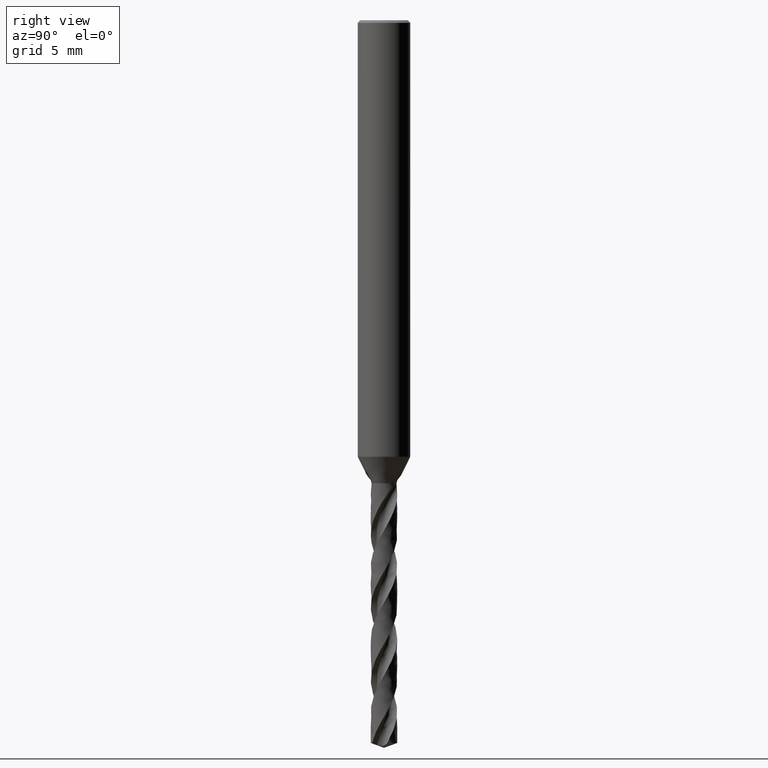
[diagram: clean part render]
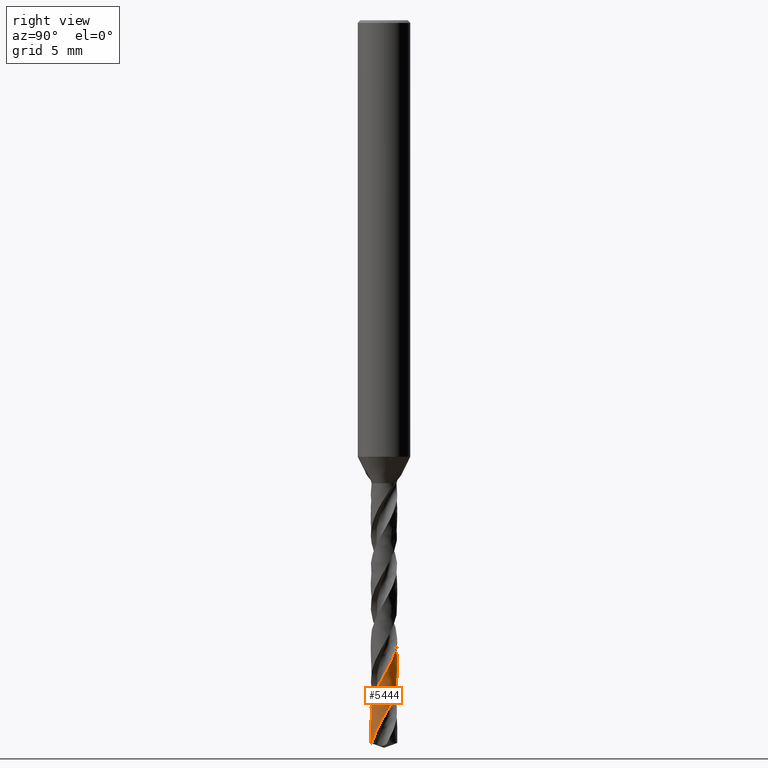
[diagram: same view with one face highlighted and labeled with its STEP entity id]
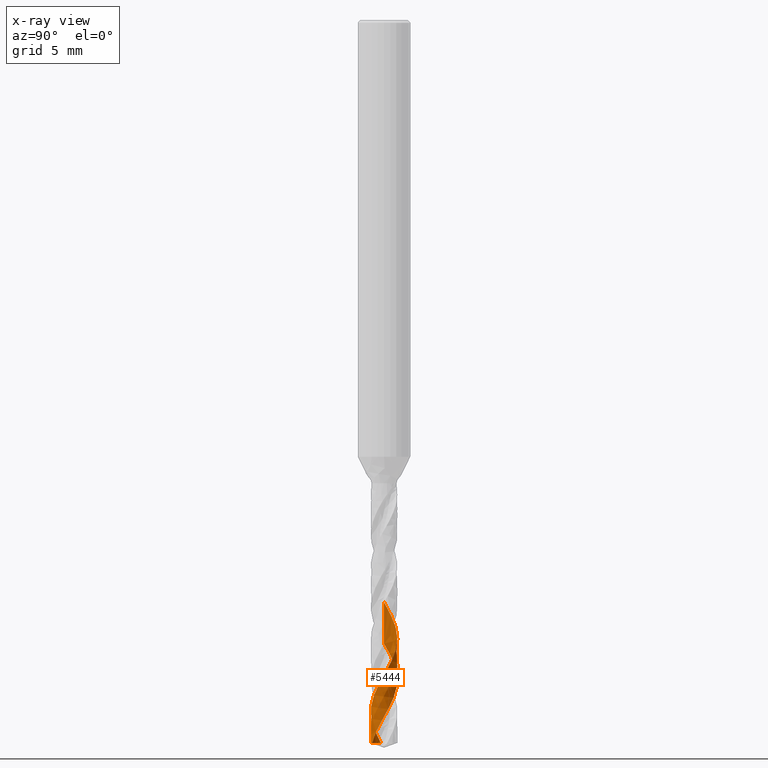
[diagram: x-ray of the same camera — body ghosted, the highlighted face saturated]
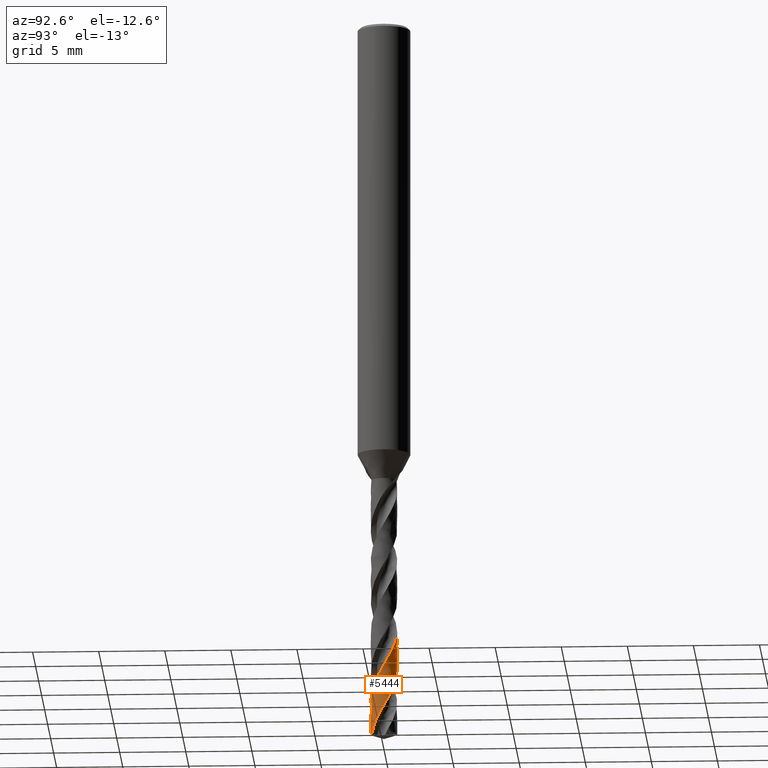
[diagram: same view with one face highlighted and labeled with its STEP entity id]
A machine part, right view. The second image highlights one B-rep face of the part: STEP entity #5444.
The next image is the same camera in x-ray: the body ghosted, the highlighted face saturated — about 0% of this face is hidden behind the body in this view.
A second angle (auxiliary view) of the same face is appended — the face is thin or edge-on in the first view.
In plain terms, the highlighted face is a freeform B-spline surface patch.
Its self-contained STEP definition (entity closure, byte-faithful):
#4046 = VERTEX_POINT('', #4047);
#4047 = CARTESIAN_POINT('', (-1., 2.94747739344493E-15, -47.1359588004816));
#4135 = EDGE_CURVE('', #4136, #4046, #4138, .T.);
#4136 = VERTEX_POINT('', #4137);
#4137 = CARTESIAN_POINT('', (0.424669433694179, -0.905348481020352, -54.6360297657338));
#4138 = B_SPLINE_CURVE_WITH_KNOTS('', 3, (#4139, #4140, #4141, #4142, #4143, #4144, #4145, #4146, #4147, #4148, #4149, #4150, #4151, #4152, #4153, #4154, #4155, #4156, #4157, #4158, #4159, #4160, #4161, #4162, #4163, #4164, #4165, #4166, #4167, #4168, #4169, #4170, #4171, #4172, #4173, #4174, #4175, #4176, #4177, #4178, #4179, #4180, #4181, #4182, #4183, #4184, #4185, #4186, #4187, #4188, #4189, #4190, #4191, #4192, #4193, #4194, #4195, #4196, #4197, #4198, #4199, #4200, #4201, #4202, #4203, #4204, #4205, #4206, #4207, #4208, #4209, #4210, #4211, #4212, #4213, #4214, #4215, #4216, #4217, #4218, #4219, #4220, #4221, #4222, #4223, #4224, #4225, #4226, #4227, #4228, #4229, #4230, #4231, #4232, #4233, #4234, #4235), .UNSPECIFIED., .F., .U., (4, 3, 3, 3, 3, 3, 3, 3, 3, 3, 3, 3, 3, 3, 3, 3, 3, 3, 3, 3, 3, 3, 3, 3, 3, 3, 3, 3, 3, 3, 3, 3, 4), (0., 0.295914526797861, 0.591631477730359, 0.887155950867782, 1.18249058024696, 1.47763589147571, 1.77259079933583, 2.06735155310429, 2.26396382237178, 2.28990474530261, 2.58647013148628, 2.88280624235671, 3.17892612535054, 3.47484017269575, 3.77055547497597, 4.06607710396555, 4.36140776263895, 4.65654793926673, 4.95149647875067, 5.24624962774515, 5.44285787966527, 5.48177185433581, 5.77832656484636, 6.07465121583153, 6.37075909767949, 6.66666042205904, 6.96236220514503, 7.25786940219132, 7.55318454000472, 7.84830802531721, 8.14323848333525, 8.43797200602595, 8.6304871447622), .UNSPECIFIED.);
#4139 = CARTESIAN_POINT('', (0.424669433694179, -0.905348481020352, -54.6360297657338));
#4140 = CARTESIAN_POINT('', (0.468788664797969, -0.884653589185163, -54.5502701914328));
#4141 = CARTESIAN_POINT('', (0.511422778139597, -0.86071031033231, -54.4644567187472));
#4142 = CARTESIAN_POINT('', (0.552061572393889, -0.83380334629095, -54.378701291087));
#4143 = CARTESIAN_POINT('', (0.592673232985535, -0.806914347459891, -54.2930031205104));
#4144 = CARTESIAN_POINT('', (0.631344200354425, -0.77703121221499, -54.2072510716711));
#4145 = CARTESIAN_POINT('', (0.66761185663903, -0.744509508921802, -54.1215568618501));
#4146 = CARTESIAN_POINT('', (0.703855906841901, -0.712008973524882, -54.0359184291244));
#4147 = CARTESIAN_POINT('', (0.737746365216572, -0.676831522464751, -53.95022626325));
#4148 = CARTESIAN_POINT('', (0.768877840107995, -0.639395704545206, -53.8645918779618));
#4149 = CARTESIAN_POINT('', (0.799989316262493, -0.60198393524773, -53.7790125038656));
#4150 = CARTESIAN_POINT('', (0.828385270324045, -0.562268716034682, -53.6933794433409));
#4151 = CARTESIAN_POINT('', (0.853726128768064, -0.520722284004338, -53.6078041631483));
#4152 = CARTESIAN_POINT('', (0.879050742979359, -0.479202484454193, -53.5222837392176));
#4153 = CARTESIAN_POINT('', (0.901356507722998, -0.435800807017566, -53.436709642147));
#4154 = CARTESIAN_POINT('', (0.920376556651824, -0.39103323895264, -53.3511931213033));
#4155 = CARTESIAN_POINT('', (0.939384335416598, -0.346294551223741, -53.265731768653));
#4156 = CARTESIAN_POINT('', (0.955135060622108, -0.300134243238459, -53.180216945729));
#4157 = CARTESIAN_POINT('', (0.967439896800337, -0.253100861475036, -53.0947597012344));
#4158 = CARTESIAN_POINT('', (0.97973663331917, -0.206098439438914, -53.0093587089778));
#4159 = CARTESIAN_POINT('', (0.988607730086341, -0.158164064229167, -52.9239042163429));
#4160 = CARTESIAN_POINT('', (0.993946307090746, -0.109866913220804, -52.8385071924795));
#4161 = CARTESIAN_POINT('', (0.997507261953549, -0.0776515916845859, -52.7815453940182));
#4162 = CARTESIAN_POINT('', (0.999501352590822, -0.0452521686649444, -52.7245679951715));
#4163 = CARTESIAN_POINT('', (0.99991756195836, -0.0128401435923276, -52.6676079984578));
#4164 = CARTESIAN_POINT('', (0.999972476410884, -0.00856371746910934, -52.6600927254263));
#4165 = CARTESIAN_POINT('', (0.999999956884663, -0.00428689363586136, -52.6525774281609));
#4166 = CARTESIAN_POINT('', (0.999999999949305, -1.00693033460664E-5, -52.6450621811025));
#4167 = CARTESIAN_POINT('', (1.00000049227882, 0.0488840299233607, -52.5591453402831));
#4168 = CARTESIAN_POINT('', (0.996405465034479, 0.0978134998450218, -52.4731740064682));
#4169 = CARTESIAN_POINT('', (0.989256622849243, 0.146189377690475, -52.3872612310859));
#4170 = CARTESIAN_POINT('', (0.982113307448681, 0.194527856044744, -52.3014148750478));
#4171 = CARTESIAN_POINT('', (0.971412427767053, 0.242376226638224, -52.2155140987853));
#4172 = CARTESIAN_POINT('', (0.957281032310988, 0.289159169278245, -52.1296718467765));
#4173 = CARTESIAN_POINT('', (0.943159948124866, 0.335907975760112, -52.0438922313725));
#4174 = CARTESIAN_POINT('', (0.925595137875285, 0.38165320776978, -51.9580582292356));
#4175 = CARTESIAN_POINT('', (0.904796055356243, 0.425845157553533, -51.8722825445366));
#4176 = CARTESIAN_POINT('', (0.884011430470366, 0.470006389107371, -51.7865664833032));
#4177 = CARTESIAN_POINT('', (0.859970069350819, 0.512673776655173, -51.7007962368556));
#4178 = CARTESIAN_POINT('', (0.832958932789208, 0.553334813911677, -51.6150842965659));
#4179 = CARTESIAN_POINT('', (0.805965937745851, 0.593968541952669, -51.5294299230773));
#4180 = CARTESIAN_POINT('', (0.775972347633163, 0.632651024113671, -51.443721349024));
#4181 = CARTESIAN_POINT('', (0.743336263300509, 0.668917931933687, -51.3580709507165));
#4182 = CARTESIAN_POINT('', (0.710721553370186, 0.705161087410404, -51.2724766475598));
#4183 = CARTESIAN_POINT('', (0.675425679924536, 0.739038647404363, -51.1868282578522));
#4184 = CARTESIAN_POINT('', (0.637870030974362, 0.770144027818675, -51.1012379611075));
#4185 = CARTESIAN_POINT('', (0.600338651023308, 0.801229307489928, -51.0157029740405));
#4186 = CARTESIAN_POINT('', (0.560501965999798, 0.829586127347862, -50.9301139827324));
#4187 = CARTESIAN_POINT('', (0.518835318343597, 0.854874208547261, -50.8445830729501));
#4188 = CARTESIAN_POINT('', (0.477195544796287, 0.880145979467672, -50.7591073288007));
#4189 = CARTESIAN_POINT('', (0.433674640765533, 0.902385453164945, -50.6735775981562));
#4190 = CARTESIAN_POINT('', (0.388791799746133, 0.921325640829687, -50.5881057556718));
#4191 = CARTESIAN_POINT('', (0.343938101554926, 0.940253530461984, -50.5026894108155));
#4192 = CARTESIAN_POINT('', (0.297666257142613, 0.955910882096238, -50.4172192649676));
#4193 = CARTESIAN_POINT('', (0.250528028345892, 0.968109346620303, -50.3318069938052));
#4194 = CARTESIAN_POINT('', (0.203421026561221, 0.980299730195882, -50.2464513045315));
#4195 = CARTESIAN_POINT('', (0.155388221695307, 0.989051492522036, -50.1610417997414));
#4196 = CARTESIAN_POINT('', (0.107001880022943, 0.994258818251848, -50.0756900893979));
#4197 = CARTESIAN_POINT('', (0.0747268930195261, 0.997732244108059, -50.0187582105486));
#4198 = CARTESIAN_POINT('', (0.0422717730914686, 0.999633453010253, -49.9618106146127));
#4199 = CARTESIAN_POINT('', (0.00980884386760344, 0.999951892133924, -49.9048805248069));
#4200 = CARTESIAN_POINT('', (0.0033835713105678, 1.00001491966136, -49.8936125538492));
#4201 = CARTESIAN_POINT('', (-0.00304243741787564, 1.00001601639416, -49.8823444860643));
#4202 = CARTESIAN_POINT('', (-0.00946783772338053, 0.999955179019965, -49.8710765759149));
#4203 = CARTESIAN_POINT('', (-0.0584343785007176, 0.999491550977746, -49.7852063490697));
#4204 = CARTESIAN_POINT('', (-0.107402349623528, 0.995421202825569, -49.6992813134942));
#4205 = CARTESIAN_POINT('', (-0.15578030778323, 0.987791726887577, -49.6134151549315));
#4206 = CARTESIAN_POINT('', (-0.204120735565911, 0.980168169701002, -49.5276156091285));
#4207 = CARTESIAN_POINT('', (-0.251935059238344, 0.968981083399653, -49.4417613103927));
#4208 = CARTESIAN_POINT('', (-0.298646407076095, 0.954363831848531, -49.3559658350885));
#4209 = CARTESIAN_POINT('', (-0.345323584356198, 0.939757273194529, -49.270233121391));
#4210 = CARTESIAN_POINT('', (-0.390960017884087, 0.921706596931024, -49.1844457077725));
#4211 = CARTESIAN_POINT('', (-0.435005449621749, 0.900427819871972, -49.0987169365086));
#4212 = CARTESIAN_POINT('', (-0.479020156365472, 0.879163886356741, -49.0130479674961));
#4213 = CARTESIAN_POINT('', (-0.521503477289347, 0.854648626371887, -48.9273244780833));
#4214 = CARTESIAN_POINT('', (-0.561943413301236, 0.827175676774508, -48.8416596069533));
#4215 = CARTESIAN_POINT('', (-0.602356078610094, 0.799721253582552, -48.7560525039973));
#4216 = CARTESIAN_POINT('', (-0.640780563543297, 0.769277502550472, -48.6703908846375));
#4217 = CARTESIAN_POINT('', (-0.676754056179096, 0.73620917370347, -48.5847877398265));
#4218 = CARTESIAN_POINT('', (-0.712703876521164, 0.703162605412264, -48.4992409260147));
#4219 = CARTESIAN_POINT('', (-0.746252684301804, 0.667451933440548, -48.413639721212));
#4220 = CARTESIAN_POINT('', (-0.776996460866714, 0.629504964079399, -48.3280969229726));
#4221 = CARTESIAN_POINT('', (-0.807720256103919, 0.591582657622906, -48.2426097216336));
#4222 = CARTESIAN_POINT('', (-0.835682565182294, 0.551377724862806, -48.1570681901555));
#4223 = CARTESIAN_POINT('', (-0.860546707274094, 0.509371538859133, -48.0715850380786));
#4224 = CARTESIAN_POINT('', (-0.885394713129025, 0.467392613871135, -47.9861573625344));
#4225 = CARTESIAN_POINT('', (-0.907180724518117, 0.423560450414819, -47.9006753927071));
#4226 = CARTESIAN_POINT('', (-0.925642295674744, 0.378399709907486, -47.8152516302387));
#4227 = CARTESIAN_POINT('', (-0.944091791929476, 0.333268507054694, -47.7298837396971));
#4228 = CARTESIAN_POINT('', (-0.959245172318702, 0.286751811958616, -47.6444617234045));
#4229 = CARTESIAN_POINT('', (-0.970919511224892, 0.23940614595985, -47.5590978912461));
#4230 = CARTESIAN_POINT('', (-0.982586054768849, 0.192092094309408, -47.4737910594882));
#4231 = CARTESIAN_POINT('', (-0.990793301664796, 0.143888975100223, -47.38843010294));
#4232 = CARTESIAN_POINT('', (-0.99544160322415, 0.0953730285276444, -47.3031272337785));
#4233 = CARTESIAN_POINT('', (-0.998477798127998, 0.0636832020699266, -47.2474087883797));
#4234 = CARTESIAN_POINT('', (-1., 0.0318379441979025, -47.1916755308893));
#4235 = CARTESIAN_POINT('', (-1., 2.80100167994214E-15, -47.1359588004816));
#4424 = VERTEX_POINT('', #4425);
#4425 = CARTESIAN_POINT('', (-1., 2.75683831883059E-15, -44.0225864428831));
#4474 = EDGE_CURVE('', #4424, #4046, #4475, .T.);
#4475 = LINE('', #4476, #4477);
#4476 = CARTESIAN_POINT('', (-1., 2.75683831883059E-15, -44.0225864428831));
#4477 = VECTOR('', #4478, 3.11337235759846);
#4478 = DIRECTION('', (0., 1.90639074614341E-16, -3.11337235759846));
#4501 = VERTEX_POINT('', #4502);
#4502 = CARTESIAN_POINT('', (-0.943192635723795, -0.332246372314882, -54.4575154577227));
#4582 = EDGE_CURVE('', #4501, #4424, #4583, .T.);
#4583 = B_SPLINE_CURVE_WITH_KNOTS('', 3, (#4584, #4585, #4586, #4587, #4588, #4589, #4590, #4591, #4592, #4593, #4594, #4595, #4596, #4597, #4598, #4599, #4600, #4601, #4602, #4603, #4604, #4605, #4606, #4607, #4608, #4609, #4610, #4611, #4612, #4613, #4614, #4615, #4616, #4617, #4618, #4619, #4620, #4621, #4622, #4623, #4624, #4625, #4626, #4627, #4628, #4629, #4630, #4631, #4632, #4633, #4634, #4635, #4636, #4637, #4638, #4639, #4640, #4641, #4642, #4643, #4644, #4645, #4646, #4647, #4648, #4649, #4650, #4651, #4652, #4653, #4654, #4655, #4656, #4657, #4658, #4659, #4660, #4661, #4662, #4663, #4664, #4665, #4666, #4667, #4668, #4669, #4670, #4671, #4672, #4673, #4674, #4675, #4676, #4677, #4678, #4679, #4680, #4681, #4682, #4683, #4684, #4685, #4686, #4687, #4688, #4689, #4690, #4691, #4692, #4693, #4694, #4695, #4696, #4697, #4698, #4699, #4700, #4701, #4702, #4703, #4704, #4705, #4706, #4707, #4708, #4709, #4710, #4711, #4712, #4713, #4714, #4715, #4716, #4717, #4718, #4719, #4720, #4721, #4722), .UNSPECIFIED., .F., .U., (4, 3, 3, 3, 3, 3, 3, 3, 3, 3, 3, 3, 3, 3, 3, 3, 3, 3, 3, 3, 3, 3, 3, 3, 3, 3, 3, 3, 3, 3, 3, 3, 3, 3, 3, 3, 3, 3, 3, 3, 3, 3, 3, 3, 3, 3, 4), (0., 0.296049966943155, 0.591900283289887, 0.887557370590338, 1.18302519015382, 1.47830545006645, 1.77339832801722, 2.06830140886388, 2.36301061141472, 2.49417627252099, 2.52012818213356, 2.8166711985674, 3.11298791145151, 3.40909119651049, 3.70499090828259, 4.0006937504126, 4.29620451778439, 4.59152548294354, 4.88665695242511, 5.18159747607878, 5.47634303419641, 5.67294785076203, 5.69890061310716, 5.99545036386882, 6.29177134950876, 6.58787660259221, 6.88377608900834, 7.17947663138278, 7.47498300887271, 7.77029756577361, 8.06542056302062, 8.36035046737494, 8.65508321208994, 8.78625339387893, 8.84459719986292, 8.90302054421934, 9.19954982133467, 9.49584954305159, 9.79193259064049, 10.0878085971025, 10.3834842451047, 10.6789640876438, 10.9742501638685, 11.2693425633998, 11.5642393521215, 11.8589361665742, 12.0068889123548), .UNSPECIFIED.);
#4584 = CARTESIAN_POINT('', (-0.943192635723795, -0.332246372314882, -54.4575154577227));
#4585 = CARTESIAN_POINT('', (-0.927048760648392, -0.378076170175649, -54.3716236477022));
#4586 = CARTESIAN_POINT('', (-0.907543298231759, -0.422761679475945, -54.2856802787992));
#4587 = CARTESIAN_POINT('', (-0.884905316706851, -0.465770952791205, -54.1997959245525));
#4588 = CARTESIAN_POINT('', (-0.862282601816019, -0.508751221451751, -54.1139694891184));
#4589 = CARTESIAN_POINT('', (-0.836502960395066, -0.55011192075575, -54.0280913679474));
#4590 = CARTESIAN_POINT('', (-0.807869920401944, -0.589360833199638, -53.9422721414581));
#4591 = CARTESIAN_POINT('', (-0.77925558153809, -0.628584110957673, -53.8565089661757));
#4592 = CARTESIAN_POINT('', (-0.747755246693663, -0.665748133316595, -53.7706941967398));
#4593 = CARTESIAN_POINT('', (-0.71374034410101, -0.700410394841887, -53.6849382513553));
#4594 = CARTESIAN_POINT('', (-0.679747216476431, -0.735050466986038, -53.5992372034666));
#4595 = CARTESIAN_POINT('', (-0.643199574714627, -0.767235971464907, -53.5134846252114));
#4596 = CARTESIAN_POINT('', (-0.604528511262127, -0.796583504142027, -53.4277909375192));
#4597 = CARTESIAN_POINT('', (-0.565881995766052, -0.825912407335264, -53.3421516472168));
#4598 = CARTESIAN_POINT('', (-0.525066015810439, -0.852443911625898, -53.2564607601053));
#4599 = CARTESIAN_POINT('', (-0.482562415622663, -0.875861584400431, -53.1708285095281));
#4600 = CARTESIAN_POINT('', (-0.440085787803414, -0.899264396549103, -53.0852506003387));
#4601 = CARTESIAN_POINT('', (-0.395869530266293, -0.919587148974655, -52.9996213269892));
#4602 = CARTESIAN_POINT('', (-0.350435808750781, -0.936586751959156, -52.9140507449169));
#4603 = CARTESIAN_POINT('', (-0.305031309183397, -0.953575421181243, -52.8285351999189));
#4604 = CARTESIAN_POINT('', (-0.258353496784461, -0.967266704921031, -52.7429681817463));
#4605 = CARTESIAN_POINT('', (-0.210953423603967, -0.977496114094454, -52.6574597953175));
#4606 = CARTESIAN_POINT('', (-0.163584512679846, -0.987718798141738, -52.5720076247146));
#4607 = CARTESIAN_POINT('', (-0.115434393985274, -0.994497073137113, -52.4865040340989));
#4608 = CARTESIAN_POINT('', (-0.067071616944662, -0.997748163716888, -52.401058948465));
#4609 = CARTESIAN_POINT('', (-0.0455468882678474, -0.999195120383058, -52.3630300676277));
#4610 = CARTESIAN_POINT('', (-0.0239711634407011, -0.999945449043098, -52.324997139003));
#4611 = CARTESIAN_POINT('', (-0.00239536524785109, -0.999997131108554, -52.2869697059153));
#4612 = CARTESIAN_POINT('', (0.00187353531497501, -1.00000735671395, -52.2794457511091));
#4613 = CARTESIAN_POINT('', (0.00614256313587085, -0.999990246582055, -52.2719217816954));
#4614 = CARTESIAN_POINT('', (0.010411329430907, -0.999945800640952, -52.2643978750385));
#4615 = CARTESIAN_POINT('', (0.0591889667022575, -0.999437933064362, -52.1784249347541));
#4616 = CARTESIAN_POINT('', (0.107967270051474, -0.995351114384983, -52.0923996170033));
#4617 = CARTESIAN_POINT('', (0.156161808960835, -0.987731486499278, -52.0064339844598));
#4618 = CARTESIAN_POINT('', (0.204319568736552, -0.980117673449001, -51.9205339556457));
#4619 = CARTESIAN_POINT('', (0.251956268799196, -0.968966680558496, -51.8345815156374));
#4620 = CARTESIAN_POINT('', (0.298501594100821, -0.954409135706228, -51.7486887597933));
#4621 = CARTESIAN_POINT('', (0.345013394234554, -0.939862076206293, -51.6628578698626));
#4622 = CARTESIAN_POINT('', (0.390494820284717, -0.921894773069961, -51.576974565513));
#4623 = CARTESIAN_POINT('', (0.434401333388356, -0.900719424432776, -51.4911507408764));
#4624 = CARTESIAN_POINT('', (0.478277660426391, -0.879558634010715, -51.4053859207796));
#4625 = CARTESIAN_POINT('', (0.520637737266721, -0.855166950858633, -51.3195688965818));
#4626 = CARTESIAN_POINT('', (0.560974265961776, -0.827833239806585, -51.2338114002049));
#4627 = CARTESIAN_POINT('', (0.601283957733199, -0.80051771457121, -51.1481109604826));
#4628 = CARTESIAN_POINT('', (0.639624324358365, -0.770229147901757, -51.0623582413434));
#4629 = CARTESIAN_POINT('', (0.675536129823287, -0.737326886328834, -50.9766648463246));
#4630 = CARTESIAN_POINT('', (0.711424608656303, -0.704445996528637, -50.8910271137338));
#4631 = CARTESIAN_POINT('', (0.744933868995466, -0.668912474721967, -50.8053372605264));
#4632 = CARTESIAN_POINT('', (0.775662221354377, -0.631148253870348, -50.7197067224277));
#4633 = CARTESIAN_POINT('', (0.806370837345235, -0.593408288421469, -50.6341311835622));
#4634 = CARTESIAN_POINT('', (0.834341503338609, -0.55339209779845, -50.5485035005893));
#4635 = CARTESIAN_POINT('', (0.859238741397911, -0.511574809075797, -50.4629351720957));
#4636 = CARTESIAN_POINT('', (0.884120003893159, -0.469784352838457, -50.3774217493836));
#4637 = CARTESIAN_POINT('', (0.90596351573337, -0.426141784940025, -50.2918561598364));
#4638 = CARTESIAN_POINT('', (0.924506790755024, -0.381165572747566, -50.2063497144179));
#4639 = CARTESIAN_POINT('', (0.94303806854369, -0.336218459519336, -50.1208985904432));
#4640 = CARTESIAN_POINT('', (0.958297217273025, -0.289881581337911, -50.0353955112096));
#4641 = CARTESIAN_POINT('', (0.970100013437206, -0.242705508651898, -49.9499516231824));
#4642 = CARTESIAN_POINT('', (0.981895007558954, -0.195560620925433, -49.8645642164188));
#4643 = CARTESIAN_POINT('', (0.990253288812204, -0.147517406072215, -49.7791247749538));
#4644 = CARTESIAN_POINT('', (0.995072835521355, -0.0991466187395665, -49.6937443880887));
#4645 = CARTESIAN_POINT('', (0.998287628995203, -0.066881739732045, -49.6367929096504));
#4646 = CARTESIAN_POINT('', (0.99993251656807, -0.0344482587478267, -49.5798265173974));
#4647 = CARTESIAN_POINT('', (0.999997963657352, -0.00201808857809207, -49.5228782251473));
#4648 = CARTESIAN_POINT('', (1.00000660298158, 0.00226284672110213, -49.5153607821846));
#4649 = CARTESIAN_POINT('', (0.999987752205398, 0.00654390129729292, -49.5078433252888));
#4650 = CARTESIAN_POINT('', (0.999941411446232, 0.0108246789752311, -49.5003259304357));
#4651 = CARTESIAN_POINT('', (0.999411897847716, 0.0597390695351526, -49.414428269893));
#4652 = CARTESIAN_POINT('', (0.99528323549028, 0.108652741564153, -49.3284775938601));
#4653 = CARTESIAN_POINT('', (0.987602409941549, 0.156976048738796, -49.2425871463249));
#4654 = CARTESIAN_POINT('', (0.979927509553731, 0.205262078231636, -49.1567629566052));
#4655 = CARTESIAN_POINT('', (0.968695967865664, 0.253021356457464, -49.0708857598065));
#4656 = CARTESIAN_POINT('', (0.954040231060678, 0.299678556987192, -48.9850687958739));
#4657 = CARTESIAN_POINT('', (0.939395164170148, 0.34630178936199, -48.8993143098416));
#4658 = CARTESIAN_POINT('', (0.921311950619513, 0.391884799357896, -48.8135068133971));
#4659 = CARTESIAN_POINT('', (0.900005533723508, 0.435878468460142, -48.7277593391839));
#4660 = CARTESIAN_POINT('', (0.878713922881605, 0.479841565897146, -48.6420714517962));
#4661 = CARTESIAN_POINT('', (0.854175853626198, 0.522274775326236, -48.556330763131));
#4662 = CARTESIAN_POINT('', (0.826683779504392, 0.562666800783875, -48.4706501304688));
#4663 = CARTESIAN_POINT('', (0.799210189309025, 0.603031669206219, -48.3850271040281));
#4664 = CARTESIAN_POINT('', (0.768751020432425, 0.641410316631545, -48.2993512130228));
#4665 = CARTESIAN_POINT('', (0.735669859039128, 0.677340282650718, -48.2137352231578));
#4666 = CARTESIAN_POINT('', (0.702610419621146, 0.713246656093269, -48.1281754510415));
#4667 = CARTESIAN_POINT('', (0.666889476235614, 0.746754202105386, -48.0425629369223));
#4668 = CARTESIAN_POINT('', (0.628933778899308, 0.777458874641894, -47.9570102811064));
#4669 = CARTESIAN_POINT('', (0.591002719556543, 0.808143616006622, -47.8715131596615));
#4670 = CARTESIAN_POINT('', (0.55079060774372, 0.836068928231489, -47.7859633239482));
#4671 = CARTESIAN_POINT('', (0.508777855144211, 0.860897841857482, -47.7004733826802));
#4672 = CARTESIAN_POINT('', (0.466792354666751, 0.885710649883564, -47.6150388955819));
#4673 = CARTESIAN_POINT('', (0.422954355785008, 0.907463089206433, -47.5295516730511));
#4674 = CARTESIAN_POINT('', (0.377787845348963, 0.925892188057949, -47.4441241369238));
#4675 = CARTESIAN_POINT('', (0.33265088642952, 0.944309229130031, -47.3587524942722));
#4676 = CARTESIAN_POINT('', (0.286128430508816, 0.959431227350743, -47.2733283173818));
#4677 = CARTESIAN_POINT('', (0.238776634827778, 0.971074517563059, -47.1879638571528));
#4678 = CARTESIAN_POINT('', (0.19145649366132, 0.982710024275414, -47.1026564627754));
#4679 = CARTESIAN_POINT('', (0.143246951570104, 0.990886518300031, -47.0172964658498));
#4680 = CARTESIAN_POINT('', (0.0947241301018659, 0.995503560604607, -46.9319961081188));
#4681 = CARTESIAN_POINT('', (0.073129151508434, 0.997558365471994, -46.8940333651563));
#4682 = CARTESIAN_POINT('', (0.0514633641214807, 0.998910503835209, -46.8560663081676));
#4683 = CARTESIAN_POINT('', (0.0297779967052184, 0.999556537126461, -46.8181049770827));
#4684 = CARTESIAN_POINT('', (0.0201324594956934, 0.999843889331741, -46.8012199769591));
#4685 = CARTESIAN_POINT('', (0.0104822566374616, 0.999991625314291, -46.7843346882964));
#4686 = CARTESIAN_POINT('', (0.00083195413097902, 0.999999653926105, -46.7674499678191));
#4687 = CARTESIAN_POINT('', (-0.00883150434539419, 1.00000769348309, -46.7505422289054));
#4688 = CARTESIAN_POINT('', (-0.0184955497217635, 0.999875645137601, -46.7336341785656));
#4689 = CARTESIAN_POINT('', (-0.028155625500346, 0.999603551790754, -46.7167266941077));
#4690 = CARTESIAN_POINT('', (-0.0771856034835853, 0.998222534590572, -46.6309122957816));
#4691 = CARTESIAN_POINT('', (-0.126152358641562, 0.993223373795104, -46.5450443258837));
#4692 = CARTESIAN_POINT('', (-0.174462019375091, 0.984663903977175, -46.4592371637941));
#4693 = CARTESIAN_POINT('', (-0.222734281631395, 0.976111060393671, -46.3734964285258));
#4694 = CARTESIAN_POINT('', (-0.270413762527456, 0.963992212388249, -46.2877020888383));
#4695 = CARTESIAN_POINT('', (-0.316922598245234, 0.948451404512489, -46.2019685037517));
#4696 = CARTESIAN_POINT('', (-0.363397423598892, 0.932921961112455, -46.1162976127833));
#4697 = CARTESIAN_POINT('', (-0.408764141033304, 0.913955227785301, -46.0305731659665));
#4698 = CARTESIAN_POINT('', (-0.452472928648617, 0.891778138799237, -45.9449093277815));
#4699 = CARTESIAN_POINT('', (-0.49615115214783, 0.869616557521337, -45.8593053914981));
#4700 = CARTESIAN_POINT('', (-0.538231162810403, 0.844219980612286, -45.7736480541812));
#4701 = CARTESIAN_POINT('', (-0.57820292780948, 0.815892991925148, -45.6880513456302));
#4702 = CARTESIAN_POINT('', (-0.618147625114327, 0.787585185434951, -45.6025126006326));
#4703 = CARTESIAN_POINT('', (-0.656039142337455, 0.756313924313186, -45.5169204225504));
#4704 = CARTESIAN_POINT('', (-0.691418106367517, 0.722454844393171, -45.4313886783968));
#4705 = CARTESIAN_POINT('', (-0.726773641364845, 0.688618186992118, -45.3459135759818));
#4706 = CARTESIAN_POINT('', (-0.759666450119809, 0.65215262220472, -45.2603852072043));
#4707 = CARTESIAN_POINT('', (-0.789697451323282, 0.61349648358692, -45.1749172700246));
#4708 = CARTESIAN_POINT('', (-0.819708759148113, 0.574865694439471, -45.0895053800088));
#4709 = CARTESIAN_POINT('', (-0.846901325638221, 0.533996610549901, -45.0040401941269));
#4710 = CARTESIAN_POINT('', (-0.870945026422474, 0.49138046455875, -44.9186354402953));
#4711 = CARTESIAN_POINT('', (-0.894972957060957, 0.44879227028936, -44.8332867030241));
#4712 = CARTESIAN_POINT('', (-0.915887519287116, 0.404403685980293, -44.7478846891086));
#4713 = CARTESIAN_POINT('', (-0.933434276852836, 0.358748450584, -44.6625429438984));
#4714 = CARTESIAN_POINT('', (-0.950969403026294, 0.313123479123923, -44.5772577700127));
#4715 = CARTESIAN_POINT('', (-0.965164209260664, 0.266173615889701, -44.4919194915456));
#4716 = CARTESIAN_POINT('', (-0.975845137485619, 0.218463424045481, -44.4066415053955));
#4717 = CARTESIAN_POINT('', (-0.986518822800863, 0.170785585251904, -44.3214213476233));
#4718 = CARTESIAN_POINT('', (-0.993697332934735, 0.122286172486102, -44.2361480471039));
#4719 = CARTESIAN_POINT('', (-0.997291654782203, 0.0735483195034036, -44.1509348926145));
#4720 = CARTESIAN_POINT('', (-0.99909618662806, 0.0490794456689961, -44.1081535676559));
#4721 = CARTESIAN_POINT('', (-1., 0.024538508248774, -44.0653659414781));
#4722 = CARTESIAN_POINT('', (-1., 2.49576243569608E-15, -44.0225864428831));
#4937 = VERTEX_POINT('', #4938);
#4938 = CARTESIAN_POINT('', (-0.971882202222063, -0.23546758801158, -54.6360297657338));
#4972 = EDGE_CURVE('', #4501, #4937, #4973, .T.);
#4973 = B_SPLINE_CURVE_WITH_KNOTS('', 3, (#4974, #4975, #4976, #4977), .UNSPECIFIED., .F., .U., (4, 4), (0., 0.205077015976347), .UNSPECIFIED.);
#4974 = CARTESIAN_POINT('', (-0.943192635723792, -0.33224637231489, -54.4575154577227));
#4975 = CARTESIAN_POINT('', (-0.954375672698743, -0.300499575363246, -54.5170136440515));
#4976 = CARTESIAN_POINT('', (-0.963957036962586, -0.268178362052276, -54.5765306008123));
#4977 = CARTESIAN_POINT('', (-0.971882202222063, -0.23546758801158, -54.6360297657338));
#5400 = EDGE_CURVE('', #4136, #4937, #5401, .T.);
#5401 = CIRCLE('', #5402, 1.);
#5402 = AXIS2_PLACEMENT_3D('', #5403, #5404, #5405);
#5403 = CARTESIAN_POINT('', (2.04852300317409E-31, 3.34549194853627E-15, -54.6360297657338));
#5404 = DIRECTION('', (3.74939945665464E-33, 6.12323399573677E-17, -1.));
#5405 = DIRECTION('', (-1., 6.12323399573677E-17, 0.));
#5444 = ADVANCED_FACE('', (#5445), #5452, .T.);
#5445 = FACE_OUTER_BOUND('', #5446, .T.);
#5446 = EDGE_LOOP('', (#5447, #5448, #5449, #5450, #5451));
#5447 = ORIENTED_EDGE('', *, *, #4972, .T.);
#5448 = ORIENTED_EDGE('', *, *, #5400, .F.);
#5449 = ORIENTED_EDGE('', *, *, #4135, .T.);
#5450 = ORIENTED_EDGE('', *, *, #4474, .F.);
#5451 = ORIENTED_EDGE('', *, *, #4582, .F.);
#5452 = (
   BOUNDED_SURFACE ()
   B_SPLINE_SURFACE (2, 1, ((#5453, #5454), (#5455, #5456), (#5457, #5458), (#5459, #5460), (#5461, #5462), (#5463, #5464), (#5465, #5466), (#5467, #5468), (#5469, #5470)), .UNSPECIFIED., .F., .F., .U.)
   B_SPLINE_SURFACE_WITH_KNOTS ((3, 2, 2, 2, 3), (2, 2), (0., 1.5707963267949, 3.14159265358979, 4.71238898038469, 6.03041957676647), (0.459491381431299, 1.), .UNSPECIFIED.)
   GEOMETRIC_REPRESENTATION_ITEM ()
   RATIONAL_B_SPLINE_SURFACE (((1., 1.), (0.707106781186548, 0.707106781186548), (1., 1.), (0.707106781186548, 0.707106781186548), (1., 1.), (0.707106781186548, 0.707106781186548), (1., 1.), (0.754237887316322, 0.754237887316322), (0.920906054004963, 0.920906054004963)))
   REPRESENTATION_ITEM ('')
   SURFACE ()
);
#5453 = CARTESIAN_POINT('', (-1., 2.75683831883059E-15, -44.0225864428831));
#5454 = CARTESIAN_POINT('', (-1., 3.40672428849364E-15, -54.6360297657338));
#5455 = CARTESIAN_POINT('', (-1., 1., -44.0225864428831));
#5456 = CARTESIAN_POINT('', (-1., 1., -54.6360297657338));
#5457 = CARTESIAN_POINT('', (1.60237371373018E-31, 1., -44.0225864428831));
#5458 = CARTESIAN_POINT('', (2.09541177949331E-31, 1., -54.6360297657338));
#5459 = CARTESIAN_POINT('', (1., 1., -44.0225864428831));
#5460 = CARTESIAN_POINT('', (1., 1., -54.6360297657338));
#5461 = CARTESIAN_POINT('', (1., 2.75683831883059E-15, -44.0225864428831));
#5462 = CARTESIAN_POINT('', (1., 3.40672428849364E-15, -54.6360297657338));
#5463 = CARTESIAN_POINT('', (1., -0.999999999999997, -44.0225864428831));
#5464 = CARTESIAN_POINT('', (1., -0.999999999999997, -54.6360297657338));
#5465 = CARTESIAN_POINT('', (1.22464679914735E-16, -0.999999999999997, -44.0225864428831));
#5466 = CARTESIAN_POINT('', (1.22464679914736E-16, -0.999999999999997, -54.6360297657338));
#5467 = CARTESIAN_POINT('', (-0.786651314573337, -0.999999999999997, -44.0225864428831));
#5468 = CARTESIAN_POINT('', (-0.786651314573337, -0.999999999999997, -54.6360297657338));
#5469 = CARTESIAN_POINT('', (-0.971882202222063, -0.235467588011581, -44.0225864428831));
#5470 = CARTESIAN_POINT('', (-0.971882202222063, -0.235467588011581, -54.6360297657338));